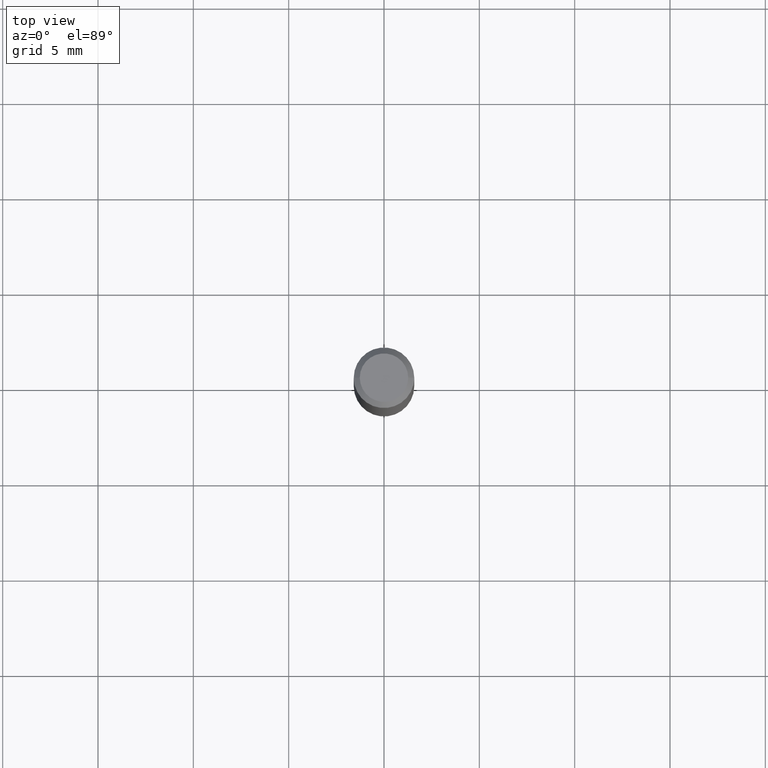
[diagram: clean part render]
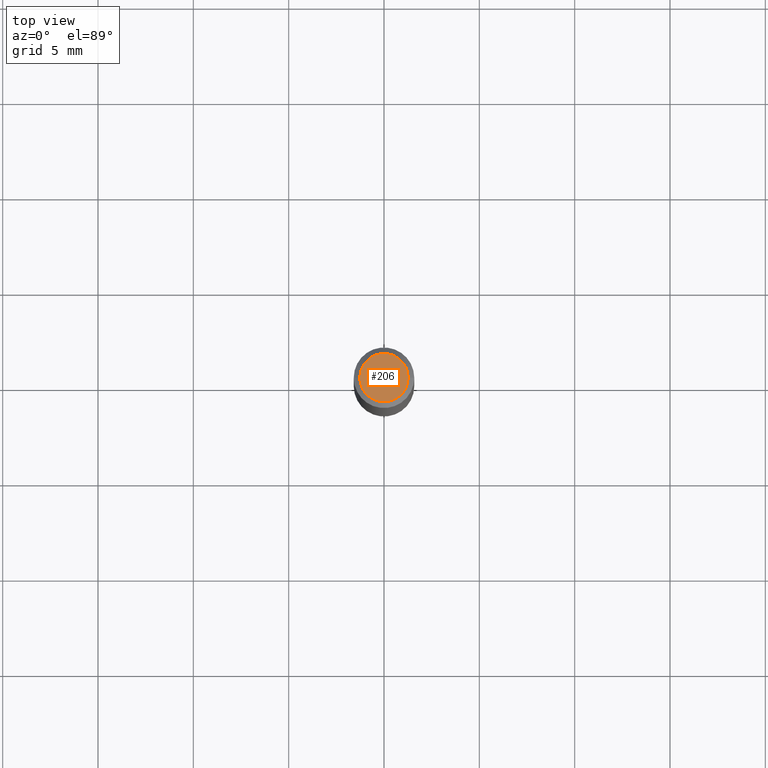
[diagram: same view with one face highlighted and labeled with its STEP entity id]
A machine part, top view. The second image highlights one B-rep face of the part: STEP entity #206.
In plain terms, the highlighted planar face has unit normal (0, -0, -1).
Its self-contained STEP definition (entity closure, byte-faithful):
#3 = ORIENTED_EDGE ( 'NONE', *, *, #151, .T. ) ;
#20 = CIRCLE ( 'NONE', #477, 0.04999999999999999584 ) ;
#28 = ORIENTED_EDGE ( 'NONE', *, *, #350, .T. ) ;
#31 = CARTESIAN_POINT ( 'NONE',  ( -0.04999999999999999584, 3.709698922520826725E-16, -1.592040838894077649E-18 ) ) ;
#34 = DIRECTION ( 'NONE',  ( 1.000000000000000000, -6.982962677686265922E-15, 4.875957971899673662E-29 ) ) ;
#45 = CARTESIAN_POINT ( 'NONE',  ( 0.04999999999999999584, -4.077247707424184705E-16, -1.592040838888913461E-18 ) ) ;
#100 = VERTEX_POINT ( 'NONE', #45 ) ;
#117 = CARTESIAN_POINT ( 'NONE',  ( 3.893286209682126177E-47, -5.558580879666067980E-33, -1.592040838891559689E-18 ) ) ;
#128 = FACE_OUTER_BOUND ( 'NONE', #180, .T. ) ;
#145 = CARTESIAN_POINT ( 'NONE',  ( 3.893286209682126177E-47, -5.558580879666067980E-33, -1.592040838891559689E-18 ) ) ;
#151 = EDGE_CURVE ( 'NONE', #324, #100, #20, .T. ) ;
#166 = AXIS2_PLACEMENT_3D ( 'NONE', #404, #292, #411 ) ;
#177 = DIRECTION ( 'NONE',  ( -2.445468806185136597E-29, 3.491481338843145583E-15, 1.000000000000000000 ) ) ;
#180 = EDGE_LOOP ( 'NONE', ( #3, #28 ) ) ;
#206 = ADVANCED_FACE ( 'NONE', ( #128 ), #369, .F. ) ;
#241 = AXIS2_PLACEMENT_3D ( 'NONE', #145, #177, #34 ) ;
#292 = DIRECTION ( 'NONE',  ( 2.438088387897960049E-29, -3.491481338843145188E-15, -1.000000000000000000 ) ) ;
#319 = DIRECTION ( 'NONE',  ( 1.000000000000000000, -6.982962677686265922E-15, 4.875957971899673662E-29 ) ) ;
#324 = VERTEX_POINT ( 'NONE', #31 ) ;
#350 = EDGE_CURVE ( 'NONE', #100, #324, #361, .T. ) ;
#358 = DIRECTION ( 'NONE',  ( -2.445468806185136597E-29, 3.491481338843145583E-15, 1.000000000000000000 ) ) ;
#361 = CIRCLE ( 'NONE', #241, 0.04999999999999999584 ) ;
#369 = PLANE ( 'NONE',  #166 ) ;
#404 = CARTESIAN_POINT ( 'NONE',  ( 1.946643104841063088E-47, -2.779290439833033990E-33, -7.960204194457798443E-19 ) ) ;
#411 = DIRECTION ( 'NONE',  ( -1.000000000000000000, 6.982962677686265922E-15, -4.876176775795935793E-29 ) ) ;
#477 = AXIS2_PLACEMENT_3D ( 'NONE', #117, #358, #319 ) ;